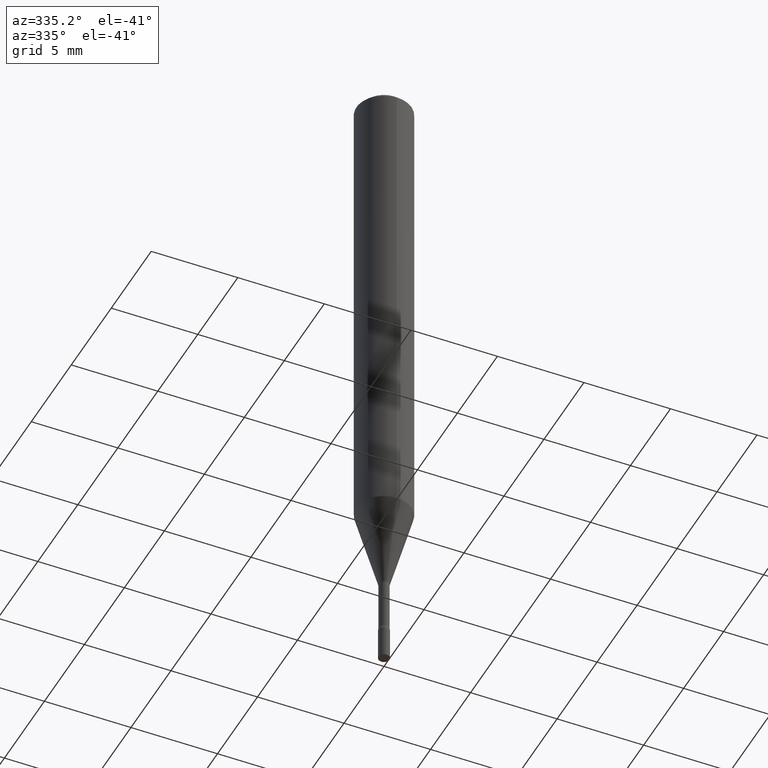
[diagram: clean part render]
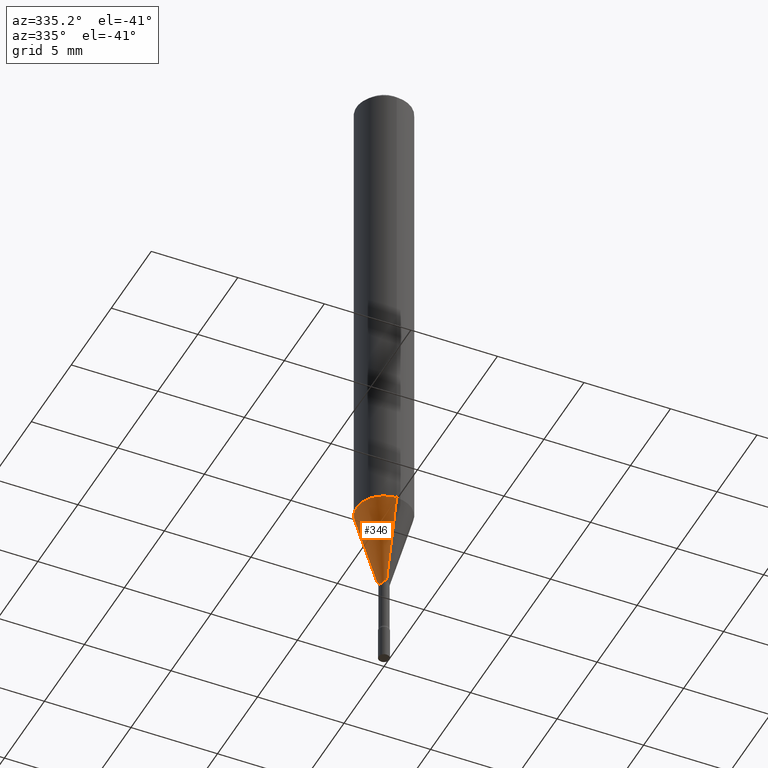
[diagram: same view with one face highlighted and labeled with its STEP entity id]
A machine part, auxiliary view. The second image highlights one B-rep face of the part: STEP entity #346.
In plain terms, the highlighted conical surface has half-angle 15 deg.
Its self-contained STEP definition (entity closure, byte-faithful):
#1 = CARTESIAN_POINT ( 'NONE',  ( 3.174285327683107935E-29, -4.532494005902626170E-15, -1.298092501787273090 ) ) ;
#6 = DIRECTION ( 'NONE',  ( -2.445346016029371458E-29, 3.491657181334983134E-15, 1.000000000000000000 ) ) ;
#30 = DIRECTION ( 'NONE',  ( -2.445346016029371458E-29, 3.491657181334983134E-15, 1.000000000000000000 ) ) ;
#33 = LINE ( 'NONE', #477, #372 ) ;
#37 = ORIENTED_EDGE ( 'NONE', *, *, #244, .T. ) ;
#60 = DIRECTION ( 'NONE',  ( -6.982962677686265922E-15, -1.000000000000000000, 4.370956789862821150E-15 ) ) ;
#125 = VECTOR ( 'NONE', #511, 39.37007874015748143 ) ;
#126 = CONICAL_SURFACE ( 'NONE', #206, 0.01226111260566398187, 0.2617993877991499629 ) ;
#128 = VERTEX_POINT ( 'NONE', #282 ) ;
#130 = EDGE_CURVE ( 'NONE', #128, #288, #167, .T. ) ;
#139 = CARTESIAN_POINT ( 'NONE',  ( 3.174285327683107935E-29, -4.532494005902626170E-15, -1.298092501787273090 ) ) ;
#143 = EDGE_LOOP ( 'NONE', ( #424, #37, #379, #417 ) ) ;
#144 = CARTESIAN_POINT ( 'NONE',  ( 2.715797425462365486E-29, -3.877828954065218301E-15, -1.110598421515879952 ) ) ;
#165 = DIRECTION ( 'NONE',  ( -2.445346016029371458E-29, 3.491657181334983134E-15, 1.000000000000000000 ) ) ;
#167 = LINE ( 'NONE', #209, #125 ) ;
#173 = VERTEX_POINT ( 'NONE', #321 ) ;
#186 = EDGE_CURVE ( 'NONE', #173, #437, #33, .T. ) ;
#206 = AXIS2_PLACEMENT_3D ( 'NONE', #139, #6, #418 ) ;
#209 = CARTESIAN_POINT ( 'NONE',  ( -8.561889171222843884E-17, -0.01226111260566851470, -1.298092501787273090 ) ) ;
#221 = CIRCLE ( 'NONE', #310, 0.01226111260566398187 ) ;
#243 = DIRECTION ( 'NONE',  ( 1.839019923739597949E-15, 0.2588190451025246253, 0.9659258262890670910 ) ) ;
#244 = EDGE_CURVE ( 'NONE', #173, #128, #221, .T. ) ;
#258 = CIRCLE ( 'NONE', #473, 0.06250000000000000000 ) ;
#282 = CARTESIAN_POINT ( 'NONE',  ( -8.561889171222843884E-17, -0.01226111260566851470, -1.298092501787273090 ) ) ;
#288 = VERTEX_POINT ( 'NONE', #333 ) ;
#310 = AXIS2_PLACEMENT_3D ( 'NONE', #1, #165, #324 ) ;
#321 = CARTESIAN_POINT ( 'NONE',  ( 2.656048273965166204E-16, 0.01226111260565944903, -1.298092501787273090 ) ) ;
#324 = DIRECTION ( 'NONE',  ( -6.982962677686265133E-15, -1.000000000000000000, 0.000000000000000000 ) ) ;
#333 = CARTESIAN_POINT ( 'NONE',  ( -4.364351673553645523E-16, -0.06250000000000388578, -1.110598421515879730 ) ) ;
#346 = ADVANCED_FACE ( 'NONE', ( #487 ), #126, .T. ) ;
#369 = CARTESIAN_POINT ( 'NONE',  ( 4.440892098500896347E-16, 0.06249999999999612116, -1.110598421515880174 ) ) ;
#372 = VECTOR ( 'NONE', #243, 39.37007874015748854 ) ;
#379 = ORIENTED_EDGE ( 'NONE', *, *, #130, .T. ) ;
#417 = ORIENTED_EDGE ( 'NONE', *, *, #481, .F. ) ;
#418 = DIRECTION ( 'NONE',  ( -6.982962677686265133E-15, -1.000000000000000000, 0.000000000000000000 ) ) ;
#424 = ORIENTED_EDGE ( 'NONE', *, *, #186, .F. ) ;
#437 = VERTEX_POINT ( 'NONE', #369 ) ;
#473 = AXIS2_PLACEMENT_3D ( 'NONE', #144, #30, #60 ) ;
#477 = CARTESIAN_POINT ( 'NONE',  ( 8.712044494294308837E-17, 0.01226111260565944903, -1.298092501787273090 ) ) ;
#481 = EDGE_CURVE ( 'NONE', #437, #288, #258, .T. ) ;
#487 = FACE_OUTER_BOUND ( 'NONE', #143, .T. ) ;
#511 = DIRECTION ( 'NONE',  ( -1.807323732225328167E-15, -0.2588190451025179084, 0.9659258262890690894 ) ) ;